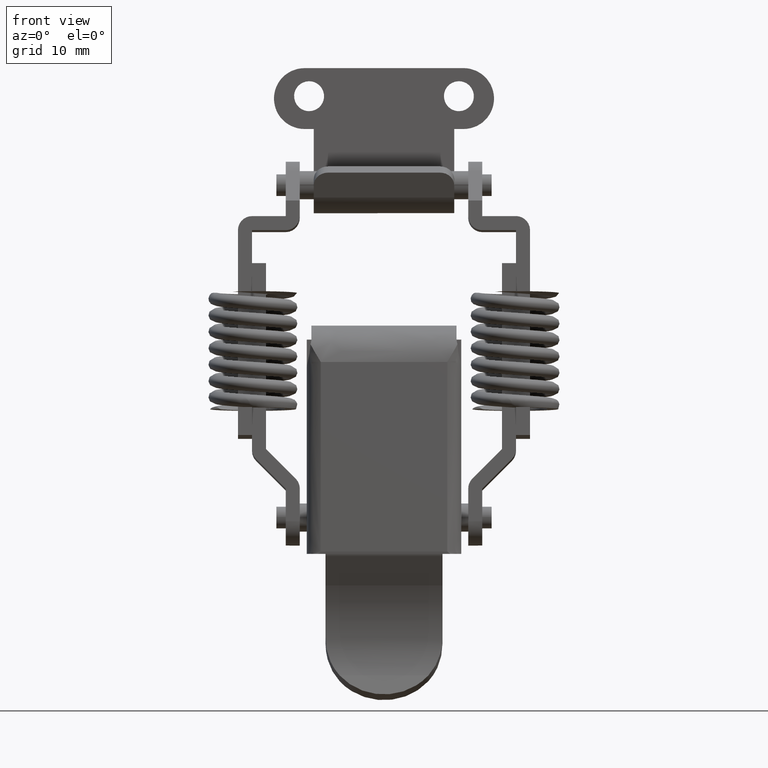
[diagram: clean part render]
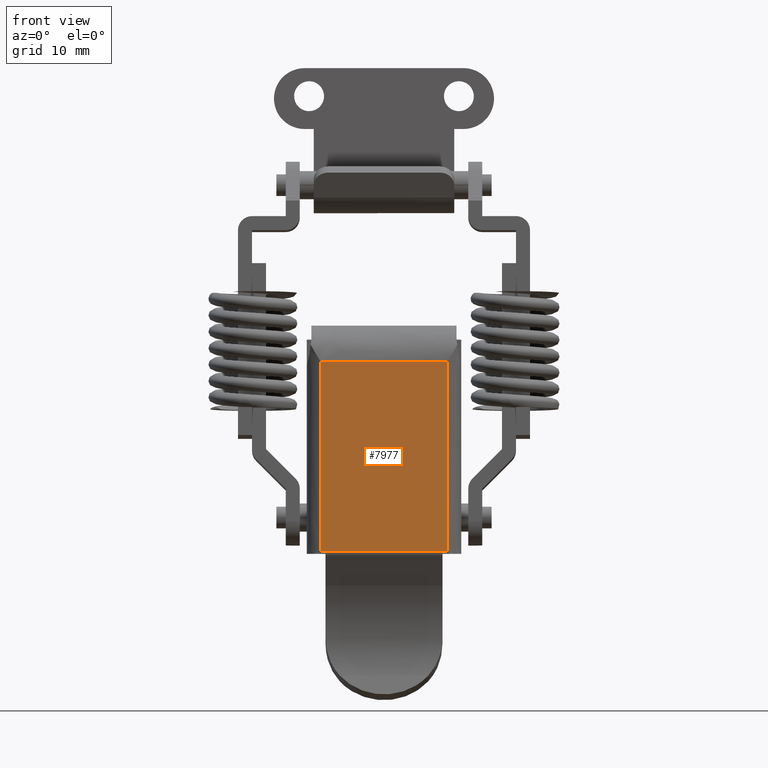
[diagram: same view with one face highlighted and labeled with its STEP entity id]
A machine part, front view. The second image highlights one B-rep face of the part: STEP entity #7977.
In plain terms, the highlighted face is a freeform B-spline surface patch.
Its self-contained STEP definition (entity closure, byte-faithful):
#6359=CARTESIAN_POINT('',(-9.0,-6.750000000000000,-39.115130764663398));
#6360=VERTEX_POINT('',#6359);
#6374=CARTESIAN_POINT('',(-9.0,6.750000000000000,-39.115130764663398));
#6375=VERTEX_POINT('',#6374);
#6376=CARTESIAN_POINT('',(-9.0,6.750000000000000,-39.115130764663398));
#6377=CARTESIAN_POINT('',(-9.0,-6.750000000000000,-39.115130764663398));
#6378=QUASI_UNIFORM_CURVE('',1,(#6376,#6377),.UNSPECIFIED.,.F.,.U.);
#6379=EDGE_CURVE('',#6375,#6360,#6378,.T.);
#7107=CARTESIAN_POINT('',(-9.000000000000140,6.750000000000000,-18.883612500000002));
#7108=VERTEX_POINT('',#7107);
#7109=CARTESIAN_POINT('',(-9.000000000000140,6.750000000000000,-18.883612500000002));
#7110=CARTESIAN_POINT('',(-9.0,6.750000000000000,-39.115130764663398));
#7111=QUASI_UNIFORM_CURVE('',1,(#7109,#7110),.UNSPECIFIED.,.F.,.U.);
#7112=EDGE_CURVE('',#7108,#6375,#7111,.T.);
#7345=CARTESIAN_POINT('',(-9.000000000000140,-6.750000000000000,-18.883612500000002));
#7346=VERTEX_POINT('',#7345);
#7347=CARTESIAN_POINT('',(-9.0,-6.750000000000000,-39.115130764663398));
#7348=CARTESIAN_POINT('',(-9.000000000000140,-6.750000000000000,-18.883612500000002));
#7349=QUASI_UNIFORM_CURVE('',1,(#7347,#7348),.UNSPECIFIED.,.F.,.U.);
#7350=EDGE_CURVE('',#6360,#7346,#7349,.T.);
#7936=CARTESIAN_POINT('',(-9.000000000000140,6.750000000000000,-18.883612500000002));
#7937=CARTESIAN_POINT('',(-9.000000000000140,-6.750000000000000,-18.883612500000002));
#7938=QUASI_UNIFORM_CURVE('',1,(#7936,#7937),.UNSPECIFIED.,.F.,.U.);
#7939=EDGE_CURVE('',#7108,#7346,#7938,.T.);
#7966=CARTESIAN_POINT('',(-9.0,-7.424324973834381,-17.873047252297589));
#7967=CARTESIAN_POINT('',(-9.0,-7.424324973834381,-40.125695650598090));
#7968=CARTESIAN_POINT('',(-9.0,7.424325335932597,-17.873047252297589));
#7969=CARTESIAN_POINT('',(-9.0,7.424325335932597,-40.125695650598090));
#7970=B_SPLINE_SURFACE_WITH_KNOTS('',1,1,((#7966,#7968),(#7967,#7969)),.UNSPECIFIED.,.F.,.F.,.U.,(2,2),(2,2),(0.0,22.252648398300501),(0.0,14.848650309766979),.UNSPECIFIED.);
#7971=ORIENTED_EDGE('',*,*,#7112,.T.);
#7972=ORIENTED_EDGE('',*,*,#6379,.T.);
#7973=ORIENTED_EDGE('',*,*,#7350,.T.);
#7974=ORIENTED_EDGE('',*,*,#7939,.F.);
#7975=EDGE_LOOP('',(#7971,#7972,#7973,#7974));
#7976=FACE_OUTER_BOUND('',#7975,.T.);
#7977=ADVANCED_FACE('',(#7976),#7970,.F.);